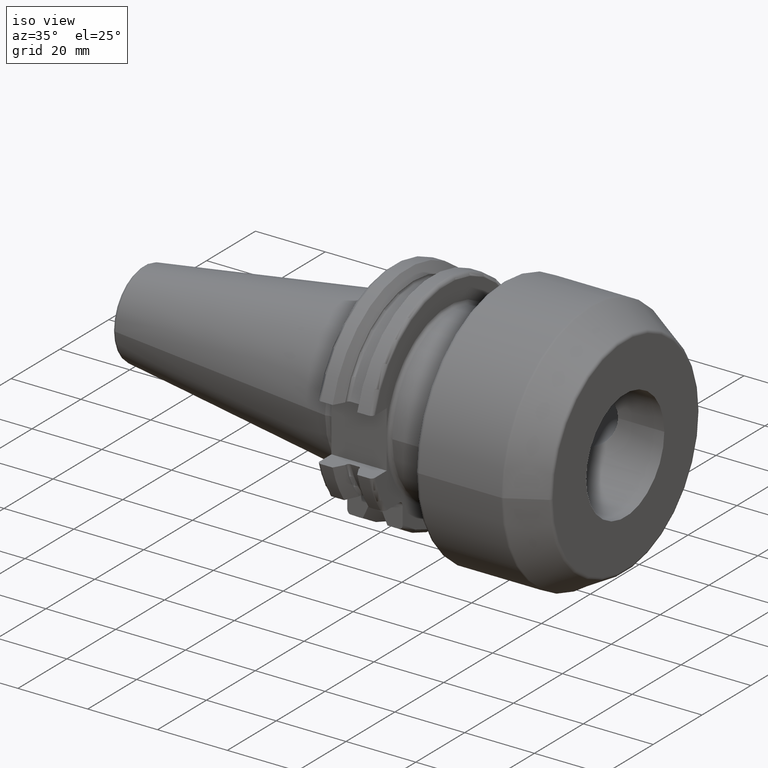
[diagram: clean part render]
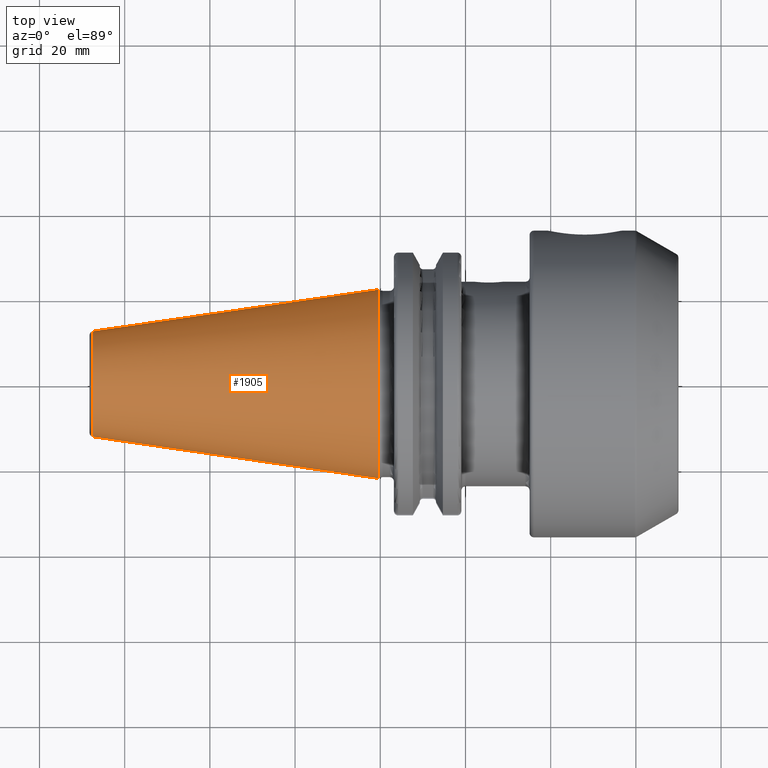
[diagram: tour spotlight — one face highlighted and labeled with its STEP entity id]
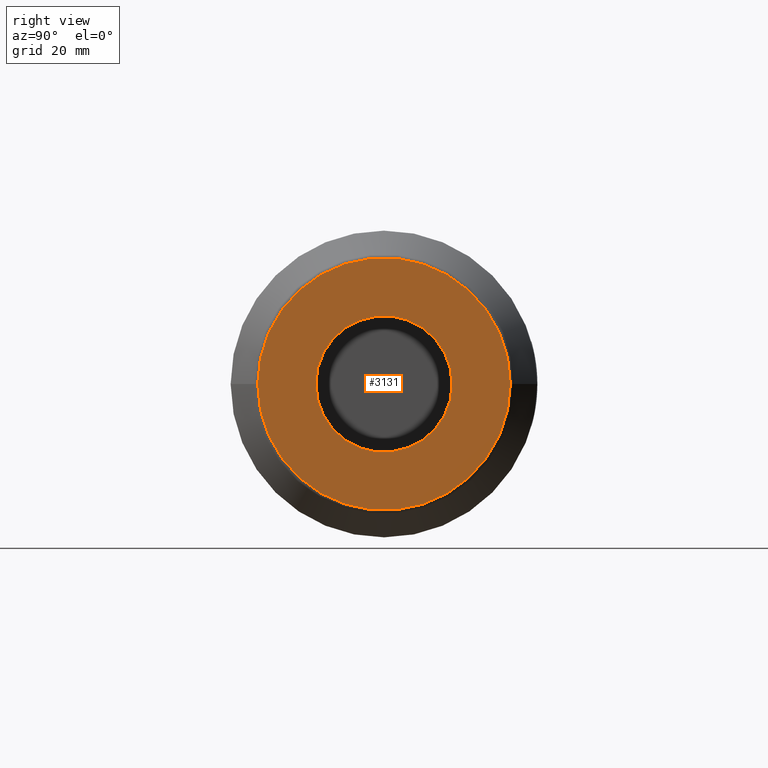
[diagram: tour spotlight — one face highlighted and labeled with its STEP entity id]
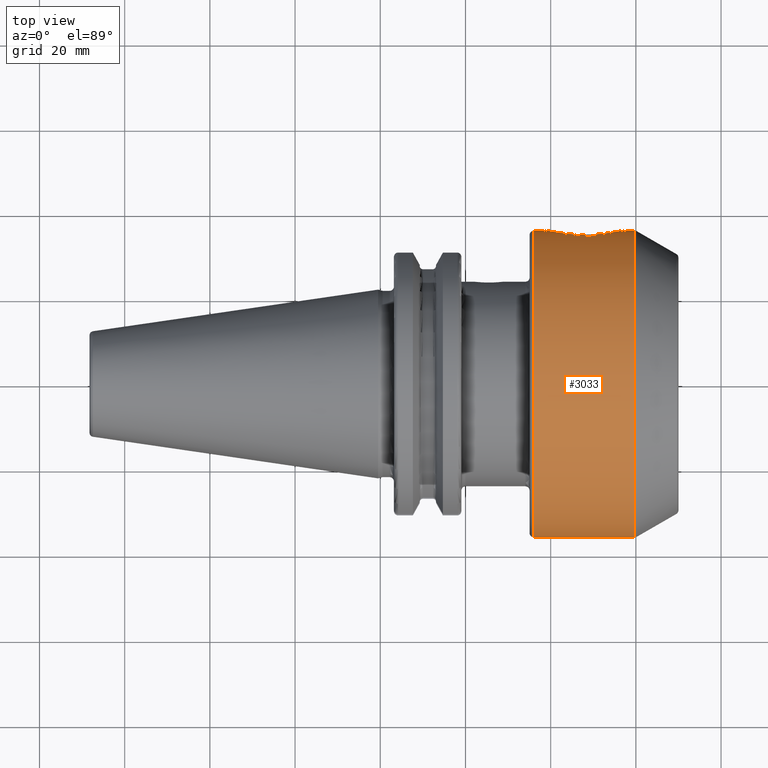
[diagram: tour spotlight — one face highlighted and labeled with its STEP entity id]
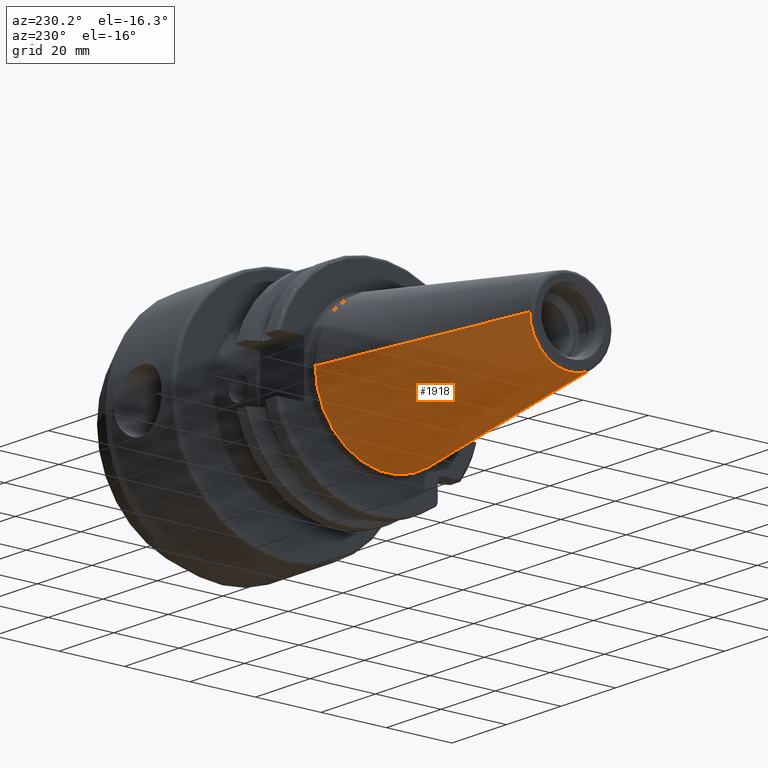
[diagram: tour spotlight — one face highlighted and labeled with its STEP entity id]
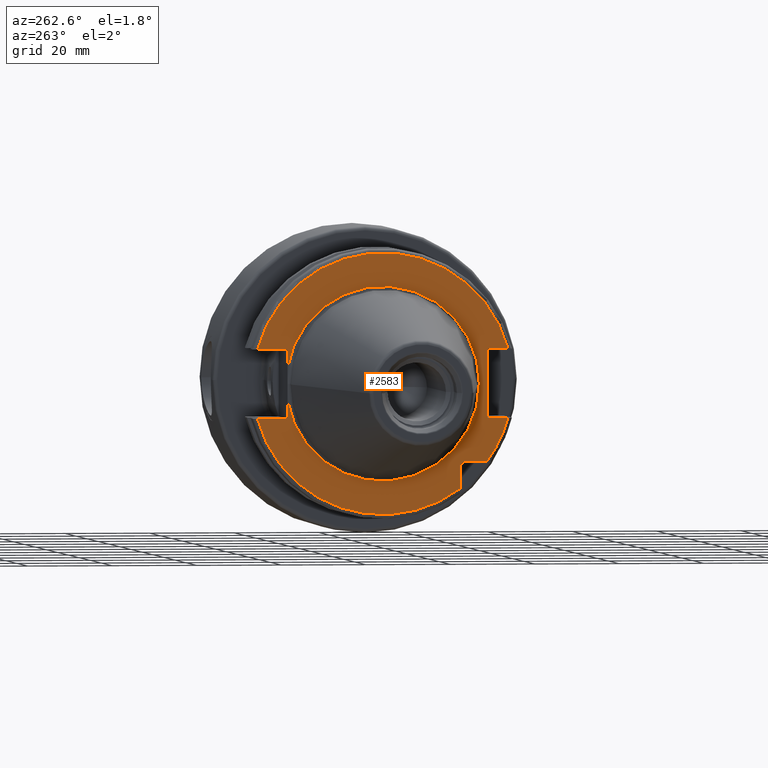
[diagram: tour spotlight — one face highlighted and labeled with its STEP entity id]
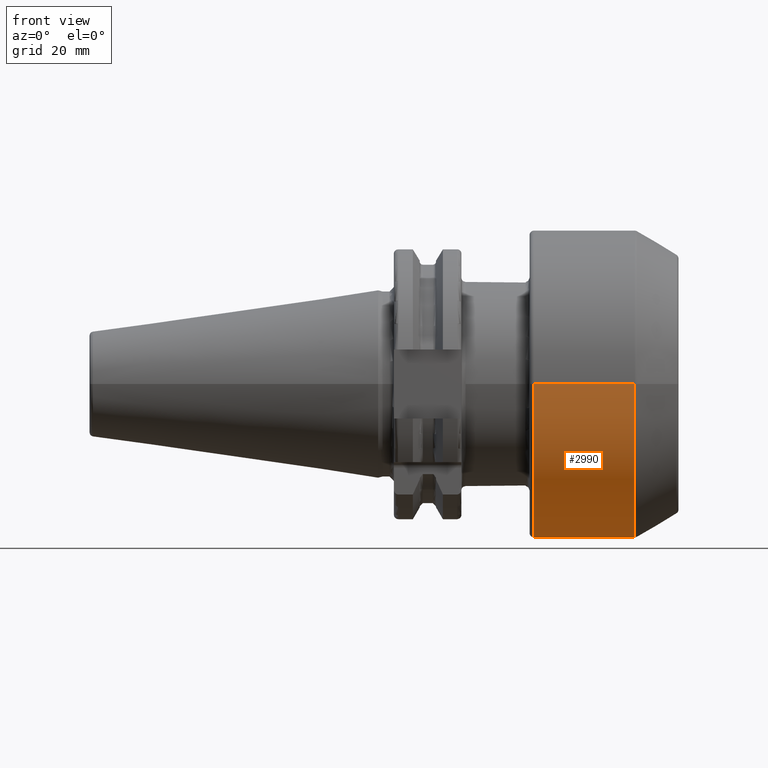
[diagram: tour spotlight — one face highlighted and labeled with its STEP entity id]
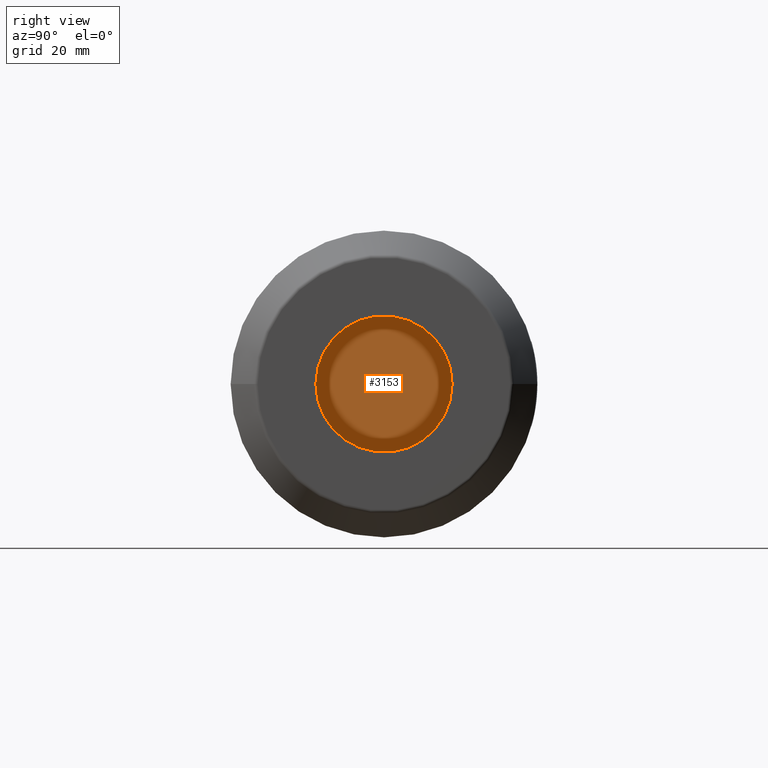
[diagram: tour spotlight — one face highlighted and labeled with its STEP entity id]
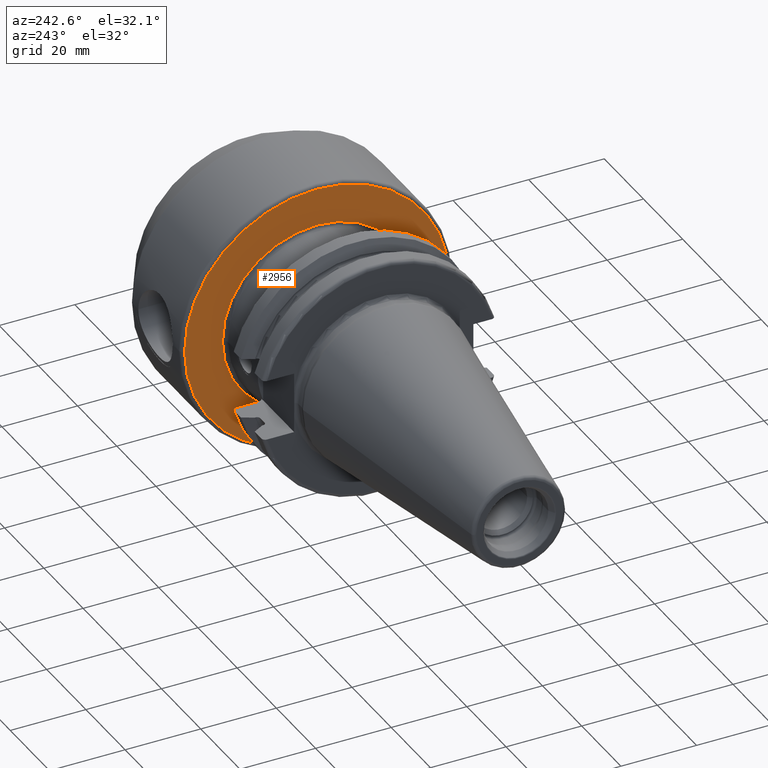
[diagram: tour spotlight — one face highlighted and labeled with its STEP entity id]
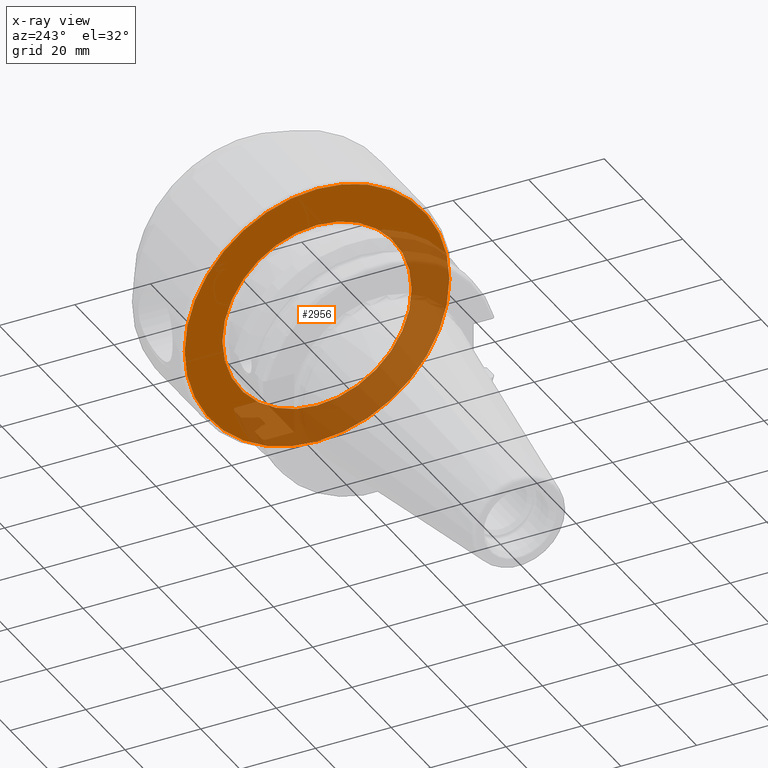
[diagram: x-ray of the same camera — body ghosted, this tour face saturated]
A machine part: a face-by-face anatomy tour. The part has 111 B-rep faces; the first image is the clean iso view, then the 8 largest visible faces are spotlighted one at a time (largest first), each with its STEP entity span.

Face 1 — top view, entity #1905. In plain terms, the highlighted conical surface has half-angle 8.298 deg.
Definition (entity closure, byte-faithful):
#37=CARTESIAN_POINT('',(-6.743710273571E1,0.E0,0.E0));
#38=DIRECTION('',(1.E0,0.E0,0.E0));
#39=DIRECTION('',(0.E0,1.E0,0.E0));
#40=AXIS2_PLACEMENT_3D('',#37,#38,#39);
#42=CARTESIAN_POINT('',(-4.896823332305E-1,0.E0,0.E0));
#43=DIRECTION('',(1.E0,0.E0,0.E0));
#44=DIRECTION('',(0.E0,1.E0,0.E0));
#45=AXIS2_PLACEMENT_3D('',#42,#43,#44);
#47=DIRECTION('',(-9.895312636440E-1,-1.443186691705E-1,0.E0));
#48=VECTOR('',#47,6.765568998391E1);
#49=CARTESIAN_POINT('',(-4.896823332305E-1,2.215358204157E1,0.E0));
#50=LINE('',#49,#48);
#51=DIRECTION('',(-9.895312636440E-1,1.443186691705E-1,0.E0));
#52=VECTOR('',#51,6.765568998391E1);
#53=CARTESIAN_POINT('',(-4.896823332305E-1,-2.215358204157E1,0.E0));
#54=LINE('',#53,#52);
#1553=CARTESIAN_POINT('',(-6.743710273571E1,1.238960290128E1,0.E0));
#1555=VERTEX_POINT('',#1553);
#1557=CARTESIAN_POINT('',(-6.743710273571E1,-1.238960290128E1,0.E0));
#1559=VERTEX_POINT('',#1557);
#1621=CARTESIAN_POINT('',(-4.896823332305E-1,2.215358204157E1,0.E0));
#1622=VERTEX_POINT('',#1621);
#1623=CARTESIAN_POINT('',(-4.896823332305E-1,-2.215358204157E1,0.E0));
#1624=VERTEX_POINT('',#1623);
#1891=CARTESIAN_POINT('',(-3.396339253447E1,0.E0,0.E0));
#1892=DIRECTION('',(1.E0,0.E0,0.E0));
#1893=DIRECTION('',(0.E0,-1.E0,0.E0));
#1894=AXIS2_PLACEMENT_3D('',#1891,#1892,#1893);
#1895=CONICAL_SURFACE('',#1894,1.727159247143E1,8.297826828206E0);
#1897=ORIENTED_EDGE('',*,*,#1896,.F.);
#1899=ORIENTED_EDGE('',*,*,#1898,.T.);
#1901=ORIENTED_EDGE('',*,*,#1900,.T.);
#1902=ORIENTED_EDGE('',*,*,#1884,.F.);
#1903=EDGE_LOOP('',(#1897,#1899,#1901,#1902));
#1904=FACE_OUTER_BOUND('',#1903,.F.);
#1905=ADVANCED_FACE('',(#1904),#1895,.T.);
#41=CIRCLE('',#40,1.238960290128E1);
#46=CIRCLE('',#45,2.215358204157E1);
#1884=EDGE_CURVE('',#1555,#1559,#41,.T.);
#1896=EDGE_CURVE('',#1622,#1555,#50,.T.);
#1898=EDGE_CURVE('',#1622,#1624,#46,.T.);
#1900=EDGE_CURVE('',#1624,#1559,#54,.T.);

Face 2 — right view, entity #3131. In plain terms, the highlighted planar face has unit normal (1, 0, 0).
Definition (entity closure, byte-faithful):
#1312=CARTESIAN_POINT('',(7.E1,0.E0,0.E0));
#1313=DIRECTION('',(1.E0,0.E0,0.E0));
#1314=DIRECTION('',(0.E0,1.E0,0.E0));
#1315=AXIS2_PLACEMENT_3D('',#1312,#1313,#1314);
#1317=CARTESIAN_POINT('',(7.E1,0.E0,0.E0));
#1318=DIRECTION('',(1.E0,0.E0,0.E0));
#1319=DIRECTION('',(0.E0,-1.E0,0.E0));
#1320=AXIS2_PLACEMENT_3D('',#1317,#1318,#1319);
#1322=CARTESIAN_POINT('',(7.E1,0.E0,0.E0));
#1323=DIRECTION('',(-1.E0,0.E0,0.E0));
#1324=DIRECTION('',(0.E0,1.E0,0.E0));
#1325=AXIS2_PLACEMENT_3D('',#1322,#1323,#1324);
#1327=CARTESIAN_POINT('',(7.E1,0.E0,0.E0));
#1328=DIRECTION('',(-1.E0,0.E0,0.E0));
#1329=DIRECTION('',(0.E0,-1.E0,0.E0));
#1330=AXIS2_PLACEMENT_3D('',#1327,#1328,#1329);
#1770=CARTESIAN_POINT('',(7.E1,1.6E1,0.E0));
#1771=CARTESIAN_POINT('',(7.E1,-1.6E1,0.E0));
#1772=VERTEX_POINT('',#1770);
#1773=VERTEX_POINT('',#1771);
#1786=CARTESIAN_POINT('',(7.E1,2.964914703891E1,-2.460308150490E-14));
#1787=CARTESIAN_POINT('',(7.E1,-2.964914703891E1,4.730584076552E-14));
#1788=VERTEX_POINT('',#1786);
#1789=VERTEX_POINT('',#1787);
#3118=CARTESIAN_POINT('',(7.E1,0.E0,0.E0));
#3119=DIRECTION('',(1.E0,0.E0,0.E0));
#3120=DIRECTION('',(0.E0,-1.E0,0.E0));
#3121=AXIS2_PLACEMENT_3D('',#3118,#3119,#3120);
#3122=PLANE('',#3121);
#3123=ORIENTED_EDGE('',*,*,#3112,.T.);
#3124=ORIENTED_EDGE('',*,*,#3098,.T.);
#3125=EDGE_LOOP('',(#3123,#3124));
#3126=FACE_OUTER_BOUND('',#3125,.F.);
#3127=ORIENTED_EDGE('',*,*,#2119,.T.);
#3128=ORIENTED_EDGE('',*,*,#2141,.T.);
#3129=EDGE_LOOP('',(#3127,#3128));
#3130=FACE_BOUND('',#3129,.F.);
#3131=ADVANCED_FACE('',(#3126,#3130),#3122,.T.);
#1316=CIRCLE('',#1315,1.6E1);
#1321=CIRCLE('',#1320,1.6E1);
#1326=CIRCLE('',#1325,2.964914703891E1);
#1331=CIRCLE('',#1330,2.964914703891E1);
#2119=EDGE_CURVE('',#1772,#1773,#1316,.T.);
#2141=EDGE_CURVE('',#1773,#1772,#1321,.T.);
#3098=EDGE_CURVE('',#1789,#1788,#1331,.T.);
#3112=EDGE_CURVE('',#1788,#1789,#1326,.T.);

Face 3 — top view, entity #3033. In plain terms, the highlighted cylindrical surface (partial cylindrical patch) has radius 36 mm, axis along (1, 0, 0).
Definition (entity closure, byte-faithful):
#1200=DIRECTION('',(-1.E0,0.E0,1.076140045131E-12));
#1201=VECTOR('',#1200,3.2E0);
#1202=CARTESIAN_POINT('',(3.925E1,3.6E1,0.E0));
#1203=LINE('',#1202,#1201);
#1209=DIRECTION('',(-1.E0,0.E0,-1.753633048803E-13));
#1210=VECTOR('',#1209,2.368205080757E1);
#1211=CARTESIAN_POINT('',(5.973205080757E1,-3.6E1,7.046757375519E-13));
#1212=LINE('',#1211,#1210);
#1218=DIRECTION('',(-1.E0,0.E0,2.427757077869E-13));
#1219=VECTOR('',#1218,2.982050807569E0);
#1220=CARTESIAN_POINT('',(5.973205080757E1,3.6E1,-7.217651312257E-13));
#1221=LINE('',#1220,#1219);
#1230=CARTESIAN_POINT('',(5.675E1,3.6E1,0.E0));
#1231=CARTESIAN_POINT('',(5.675E1,3.6E1,4.612756967184E-1));
#1232=CARTESIAN_POINT('',(5.667798589991E1,3.598239575850E1,1.370414455158E0));
#1233=CARTESIAN_POINT('',(5.635862950926E1,3.590613042482E1,2.705846880617E0));
#1234=CARTESIAN_POINT('',(5.583732576085E1,3.578745453658E1,3.969876847462E0));
#1235=CARTESIAN_POINT('',(5.512555594890E1,3.563714783681E1,5.139618959728E0));
#1236=CARTESIAN_POINT('',(5.423600828501E1,3.546860356401E1,6.189262365687E0));
#1237=CARTESIAN_POINT('',(5.318825896679E1,3.529797068646E1,7.091204701772E0));
#1238=CARTESIAN_POINT('',(5.200377068404E1,3.514202682792E1,7.821565471602E0));
#1239=CARTESIAN_POINT('',(5.072231907591E1,3.501822024073E1,8.353815828371E0));
#1240=CARTESIAN_POINT('',(4.938559255103E1,3.493918830350E1,8.675653569221E0));
#1241=CARTESIAN_POINT('',(4.802207257830E1,3.491150780264E1,8.785440789837E0));
#1242=CARTESIAN_POINT('',(4.665714047424E1,3.493749325739E1,8.682419774839E0));
#1243=CARTESIAN_POINT('',(4.531874089723E1,3.501503414241E1,8.367045332513E0));
#1244=CARTESIAN_POINT('',(4.403591887625E1,3.513750357161E1,7.841655410783E0));
#1245=CARTESIAN_POINT('',(4.284770485934E1,3.529262953106E1,7.117583224940E0));
#1246=CARTESIAN_POINT('',(4.179059929608E1,3.546384211952E1,6.216563230311E0));
#1247=CARTESIAN_POINT('',(4.089160181120E1,3.563365904071E1,5.164063163545E0));
#1248=CARTESIAN_POINT('',(4.017225517124E1,3.578532281286E1,3.989562333681E0));
#1249=CARTESIAN_POINT('',(3.964574291133E1,3.590509743700E1,2.720445458926E0));
#1250=CARTESIAN_POINT('',(3.932288929380E1,3.598218053227E1,1.378440718654E0));
#1251=CARTESIAN_POINT('',(3.925E1,3.6E1,4.640940642565E-1));
#1252=CARTESIAN_POINT('',(3.925E1,3.6E1,0.E0));
#1254=CARTESIAN_POINT('',(5.973205080757E1,0.E0,0.E0));
#1255=DIRECTION('',(-1.E0,0.E0,0.E0));
#1256=DIRECTION('',(0.E0,-1.E0,0.E0));
#1257=AXIS2_PLACEMENT_3D('',#1254,#1255,#1256);
#1259=CARTESIAN_POINT('',(3.605E1,0.E0,0.E0));
#1260=DIRECTION('',(-1.E0,0.E0,0.E0));
#1261=DIRECTION('',(0.E0,-1.E0,0.E0));
#1262=AXIS2_PLACEMENT_3D('',#1259,#1260,#1261);
#1774=CARTESIAN_POINT('',(5.973205080757E1,3.6E1,0.E0));
#1775=CARTESIAN_POINT('',(5.973205080757E1,-3.6E1,0.E0));
#1776=VERTEX_POINT('',#1774);
#1777=VERTEX_POINT('',#1775);
#1799=VERTEX_POINT('',#1230);
#1800=VERTEX_POINT('',#1252);
#1821=CARTESIAN_POINT('',(3.605E1,3.6E1,3.445852508657E-12));
#1822=VERTEX_POINT('',#1821);
#1835=CARTESIAN_POINT('',(3.605E1,-3.6E1,0.E0));
#1836=VERTEX_POINT('',#1835);
#3018=CARTESIAN_POINT('',(1.65025E1,0.E0,0.E0));
#3019=DIRECTION('',(1.E0,0.E0,0.E0));
#3020=DIRECTION('',(0.E0,-1.E0,0.E0));
#3021=AXIS2_PLACEMENT_3D('',#3018,#3019,#3020);
#3022=CYLINDRICAL_SURFACE('',#3021,3.6E1);
#3023=ORIENTED_EDGE('',*,*,#3010,.F.);
#3024=ORIENTED_EDGE('',*,*,#2986,.F.);
#3026=ORIENTED_EDGE('',*,*,#3025,.F.);
#3027=ORIENTED_EDGE('',*,*,#2982,.T.);
#3029=ORIENTED_EDGE('',*,*,#3028,.T.);
#3030=ORIENTED_EDGE('',*,*,#2979,.F.);
#3031=EDGE_LOOP('',(#3023,#3024,#3026,#3027,#3029,#3030));
#3032=FACE_OUTER_BOUND('',#3031,.F.);
#3033=ADVANCED_FACE('',(#3032),#3022,.T.);
#1253=B_SPLINE_CURVE_WITH_KNOTS('',3,(#1230,#1231,#1232,#1233,#1234,#1235,#1236,
#1237,#1238,#1239,#1240,#1241,#1242,#1243,#1244,#1245,#1246,#1247,#1248,#1249,
#1250,#1251,#1252),.UNSPECIFIED.,.F.,.F.,(4,1,1,1,1,1,1,1,1,1,1,1,1,1,1,1,1,1,1,
1,4),(0.E0,5.E-2,1.E-1,1.5E-1,2.E-1,2.5E-1,3.E-1,3.5E-1,4.E-1,4.5E-1,5.E-1,
5.5E-1,6.E-1,6.5E-1,7.E-1,7.5E-1,8.E-1,8.5E-1,9.E-1,9.5E-1,1.E0),.UNSPECIFIED.);
#1258=CIRCLE('',#1257,3.6E1);
#1263=CIRCLE('',#1262,3.6E1);
#2979=EDGE_CURVE('',#1800,#1822,#1203,.T.);
#2982=EDGE_CURVE('',#1777,#1836,#1212,.T.);
#2986=EDGE_CURVE('',#1776,#1799,#1221,.T.);
#3010=EDGE_CURVE('',#1799,#1800,#1253,.T.);
#3025=EDGE_CURVE('',#1777,#1776,#1258,.T.);
#3028=EDGE_CURVE('',#1836,#1822,#1263,.T.);

Face 4 — auxiliary view, entity #1918. In plain terms, the highlighted conical surface has half-angle 8.298 deg.
Definition (entity closure, byte-faithful):
#32=CARTESIAN_POINT('',(-6.743710273571E1,0.E0,0.E0));
#33=DIRECTION('',(-1.E0,0.E0,0.E0));
#34=DIRECTION('',(0.E0,1.E0,0.E0));
#35=AXIS2_PLACEMENT_3D('',#32,#33,#34);
#47=DIRECTION('',(-9.895312636440E-1,-1.443186691705E-1,0.E0));
#48=VECTOR('',#47,6.765568998391E1);
#49=CARTESIAN_POINT('',(-4.896823332305E-1,2.215358204157E1,0.E0));
#50=LINE('',#49,#48);
#51=DIRECTION('',(-9.895312636440E-1,1.443186691705E-1,0.E0));
#52=VECTOR('',#51,6.765568998391E1);
#53=CARTESIAN_POINT('',(-4.896823332305E-1,-2.215358204157E1,0.E0));
#54=LINE('',#53,#52);
#55=CARTESIAN_POINT('',(-4.896823332305E-1,0.E0,0.E0));
#56=DIRECTION('',(-1.E0,0.E0,0.E0));
#57=DIRECTION('',(0.E0,1.E0,0.E0));
#58=AXIS2_PLACEMENT_3D('',#55,#56,#57);
#1553=CARTESIAN_POINT('',(-6.743710273571E1,1.238960290128E1,0.E0));
#1555=VERTEX_POINT('',#1553);
#1557=CARTESIAN_POINT('',(-6.743710273571E1,-1.238960290128E1,0.E0));
#1559=VERTEX_POINT('',#1557);
#1621=CARTESIAN_POINT('',(-4.896823332305E-1,2.215358204157E1,0.E0));
#1622=VERTEX_POINT('',#1621);
#1623=CARTESIAN_POINT('',(-4.896823332305E-1,-2.215358204157E1,0.E0));
#1624=VERTEX_POINT('',#1623);
#1906=CARTESIAN_POINT('',(-3.396339253447E1,0.E0,0.E0));
#1907=DIRECTION('',(1.E0,0.E0,0.E0));
#1908=DIRECTION('',(0.E0,-1.E0,0.E0));
#1909=AXIS2_PLACEMENT_3D('',#1906,#1907,#1908);
#1910=CONICAL_SURFACE('',#1909,1.727159247143E1,8.297826828206E0);
#1911=ORIENTED_EDGE('',*,*,#1896,.T.);
#1912=ORIENTED_EDGE('',*,*,#1873,.T.);
#1913=ORIENTED_EDGE('',*,*,#1900,.F.);
#1915=ORIENTED_EDGE('',*,*,#1914,.F.);
#1916=EDGE_LOOP('',(#1911,#1912,#1913,#1915));
#1917=FACE_OUTER_BOUND('',#1916,.F.);
#1918=ADVANCED_FACE('',(#1917),#1910,.T.);
#36=CIRCLE('',#35,1.238960290128E1);
#59=CIRCLE('',#58,2.215358204157E1);
#1873=EDGE_CURVE('',#1555,#1559,#36,.T.);
#1896=EDGE_CURVE('',#1622,#1555,#50,.T.);
#1900=EDGE_CURVE('',#1624,#1559,#54,.T.);
#1914=EDGE_CURVE('',#1622,#1624,#59,.T.);

Face 5 — auxiliary view, entity #2583. In plain terms, the highlighted planar face has unit normal (1, 0, 0).
Definition (entity closure, byte-faithful):
#117=CARTESIAN_POINT('',(3.2E0,0.E0,0.E0));
#118=DIRECTION('',(-1.E0,0.E0,0.E0));
#119=DIRECTION('',(0.E0,9.857923497268E-1,-1.679685780739E-1));
#120=AXIS2_PLACEMENT_3D('',#117,#118,#119);
#659=DIRECTION('',(0.E0,-1.E0,0.E0));
#660=VECTOR('',#659,4.990259339464E0);
#661=CARTESIAN_POINT('',(3.2E0,-1.97E1,-1.835E1));
#662=LINE('',#661,#660);
#663=DIRECTION('',(0.E0,0.E0,1.E0));
#664=VECTOR('',#663,4.990259339464E0);
#665=CARTESIAN_POINT('',(3.2E0,-1.835E1,-2.469025933946E1));
#666=LINE('',#665,#664);
#667=CARTESIAN_POINT('',(3.2E0,0.E0,0.E0));
#668=DIRECTION('',(-1.E0,0.E0,0.E0));
#669=DIRECTION('',(0.E0,9.647119303464E-1,-2.633075985372E-1));
#670=AXIS2_PLACEMENT_3D('',#667,#668,#669);
#672=DIRECTION('',(0.E0,-1.E0,0.E0));
#673=VECTOR('',#672,7.126950757280E0);
#674=CARTESIAN_POINT('',(3.2E0,2.967695075728E1,-8.1E0));
#675=LINE('',#674,#673);
#676=DIRECTION('',(0.E0,0.E0,-1.E0));
#677=VECTOR('',#676,4.257718776560E0);
#678=CARTESIAN_POINT('',(3.2E0,2.255E1,-3.842281223440E0));
#679=LINE('',#678,#677);
#680=DIRECTION('',(0.E0,0.E0,-1.E0));
#681=VECTOR('',#680,4.257718776560E0);
#682=CARTESIAN_POINT('',(3.2E0,2.255E1,8.1E0));
#683=LINE('',#682,#681);
#684=DIRECTION('',(0.E0,-1.E0,0.E0));
#685=VECTOR('',#684,7.126950757280E0);
#686=CARTESIAN_POINT('',(3.2E0,2.967695075728E1,8.1E0));
#687=LINE('',#686,#685);
#688=CARTESIAN_POINT('',(3.2E0,0.E0,0.E0));
#689=DIRECTION('',(1.E0,0.E0,0.E0));
#690=DIRECTION('',(0.E0,9.647119303464E-1,2.633075985372E-1));
#691=AXIS2_PLACEMENT_3D('',#688,#689,#690);
#693=DIRECTION('',(0.E0,1.E0,0.E0));
#694=VECTOR('',#693,4.826950757280E0);
#695=CARTESIAN_POINT('',(3.2E0,-2.967695075728E1,8.1E0));
#696=LINE('',#695,#694);
#697=DIRECTION('',(0.E0,0.E0,1.E0));
#698=VECTOR('',#697,1.62E1);
#699=CARTESIAN_POINT('',(3.2E0,-2.485E1,-8.1E0));
#700=LINE('',#699,#698);
#701=DIRECTION('',(0.E0,1.E0,0.E0));
#702=VECTOR('',#701,4.826950757280E0);
#703=CARTESIAN_POINT('',(3.2E0,-2.967695075728E1,-8.1E0));
#704=LINE('',#703,#702);
#705=CARTESIAN_POINT('',(3.2E0,0.E0,0.E0));
#706=DIRECTION('',(-1.E0,0.E0,0.E0));
#707=DIRECTION('',(0.E0,-8.026089992512E-1,-5.965054855750E-1));
#708=AXIS2_PLACEMENT_3D('',#705,#706,#707);
#719=CARTESIAN_POINT('',(3.2E0,-1.97E1,-1.97E1));
#720=DIRECTION('',(1.E0,0.E0,0.E0));
#721=DIRECTION('',(0.E0,1.E0,0.E0));
#722=AXIS2_PLACEMENT_3D('',#719,#720,#721);
#1109=CARTESIAN_POINT('',(3.2E0,0.E0,0.E0));
#1110=DIRECTION('',(1.E0,0.E0,0.E0));
#1111=DIRECTION('',(0.E0,9.857923497268E-1,1.679685780739E-1));
#1112=AXIS2_PLACEMENT_3D('',#1109,#1110,#1111);
#1565=CARTESIAN_POINT('',(3.2E0,-2.2875E1,0.E0));
#1567=VERTEX_POINT('',#1565);
#1707=CARTESIAN_POINT('',(3.2E0,2.967695075728E1,8.1E0));
#1708=CARTESIAN_POINT('',(3.2E0,2.255E1,8.1E0));
#1709=VERTEX_POINT('',#1707);
#1710=VERTEX_POINT('',#1708);
#1711=CARTESIAN_POINT('',(3.2E0,2.255E1,3.842281223440E0));
#1712=VERTEX_POINT('',#1711);
#1713=CARTESIAN_POINT('',(3.2E0,2.255E1,-3.842281223440E0));
#1714=CARTESIAN_POINT('',(3.2E0,2.255E1,-8.1E0));
#1715=VERTEX_POINT('',#1713);
#1716=VERTEX_POINT('',#1714);
#1717=CARTESIAN_POINT('',(3.2E0,2.967695075728E1,-8.1E0));
#1718=VERTEX_POINT('',#1717);
#1719=CARTESIAN_POINT('',(3.2E0,-2.967695075728E1,-8.1E0));
#1720=CARTESIAN_POINT('',(3.2E0,-2.485E1,-8.1E0));
#1721=VERTEX_POINT('',#1719);
#1722=VERTEX_POINT('',#1720);
#1723=CARTESIAN_POINT('',(3.2E0,-2.485E1,8.1E0));
#1724=VERTEX_POINT('',#1723);
#1725=CARTESIAN_POINT('',(3.2E0,-2.967695075728E1,8.1E0));
#1726=VERTEX_POINT('',#1725);
#1752=CARTESIAN_POINT('',(3.2E0,-1.835E1,-2.469025933946E1));
#1753=VERTEX_POINT('',#1752);
#1760=CARTESIAN_POINT('',(3.2E0,-1.97E1,-1.835E1));
#1761=CARTESIAN_POINT('',(3.2E0,-2.469025933946E1,-1.835E1));
#1762=VERTEX_POINT('',#1760);
#1763=VERTEX_POINT('',#1761);
#1764=CARTESIAN_POINT('',(3.2E0,-1.835E1,-1.97E1));
#1765=VERTEX_POINT('',#1764);
#2554=CARTESIAN_POINT('',(3.2E0,0.E0,0.E0));
#2555=DIRECTION('',(1.E0,0.E0,0.E0));
#2556=DIRECTION('',(0.E0,-1.E0,0.E0));
#2557=AXIS2_PLACEMENT_3D('',#2554,#2555,#2556);
#2558=PLANE('',#2557);
#2560=ORIENTED_EDGE('',*,*,#2559,.F.);
#2562=ORIENTED_EDGE('',*,*,#2561,.F.);
#2564=ORIENTED_EDGE('',*,*,#2563,.F.);
#2566=ORIENTED_EDGE('',*,*,#2565,.F.);
#2567=ORIENTED_EDGE('',*,*,#2194,.T.);
#2568=ORIENTED_EDGE('',*,*,#2006,.F.);
#2569=ORIENTED_EDGE('',*,*,#1987,.T.);
#2571=ORIENTED_EDGE('',*,*,#2570,.F.);
#2572=ORIENTED_EDGE('',*,*,#2001,.F.);
#2573=ORIENTED_EDGE('',*,*,#2064,.F.);
#2575=ORIENTED_EDGE('',*,*,#2574,.T.);
#2576=ORIENTED_EDGE('',*,*,#2533,.T.);
#2577=ORIENTED_EDGE('',*,*,#2274,.F.);
#2578=ORIENTED_EDGE('',*,*,#2309,.F.);
#2580=ORIENTED_EDGE('',*,*,#2579,.F.);
#2581=EDGE_LOOP('',(#2560,#2562,#2564,#2566,#2567,#2568,#2569,#2571,#2572,#2573,
#2575,#2576,#2577,#2578,#2580));
#2582=FACE_OUTER_BOUND('',#2581,.F.);
#2583=ADVANCED_FACE('',(#2582),#2558,.F.);
#121=CIRCLE('',#120,2.2875E1);
#671=CIRCLE('',#670,3.07625E1);
#692=CIRCLE('',#691,3.07625E1);
#709=CIRCLE('',#708,3.07625E1);
#723=CIRCLE('',#722,1.35E0);
#1113=CIRCLE('',#1112,2.2875E1);
#1987=EDGE_CURVE('',#1715,#1567,#121,.T.);
#2001=EDGE_CURVE('',#1710,#1712,#683,.T.);
#2006=EDGE_CURVE('',#1715,#1716,#679,.T.);
#2064=EDGE_CURVE('',#1709,#1710,#687,.T.);
#2194=EDGE_CURVE('',#1718,#1716,#675,.T.);
#2274=EDGE_CURVE('',#1722,#1724,#700,.T.);
#2309=EDGE_CURVE('',#1721,#1722,#704,.T.);
#2533=EDGE_CURVE('',#1726,#1724,#696,.T.);
#2559=EDGE_CURVE('',#1762,#1763,#662,.T.);
#2561=EDGE_CURVE('',#1765,#1762,#723,.T.);
#2563=EDGE_CURVE('',#1753,#1765,#666,.T.);
#2565=EDGE_CURVE('',#1718,#1753,#671,.T.);
#2570=EDGE_CURVE('',#1712,#1567,#1113,.T.);
#2574=EDGE_CURVE('',#1709,#1726,#692,.T.);
#2579=EDGE_CURVE('',#1763,#1721,#709,.T.);

Face 6 — front view, entity #2990. In plain terms, the highlighted cylindrical surface (partial cylindrical patch) has radius 36 mm, axis along (1, 0, 0).
Definition (entity closure, byte-faithful):
#1176=CARTESIAN_POINT('',(3.925E1,3.6E1,0.E0));
#1177=CARTESIAN_POINT('',(3.925E1,3.6E1,-4.608858053215E-1));
#1178=CARTESIAN_POINT('',(3.932189488195E1,3.598242511909E1,-1.369293175827E0));
#1179=CARTESIAN_POINT('',(3.964074311566E1,3.590627863925E1,-2.703742526327E0));
#1180=CARTESIAN_POINT('',(4.016129106866E1,3.578776270833E1,-3.967012542360E0));
#1181=CARTESIAN_POINT('',(4.087183742587E1,3.563767948365E1,-5.135867022004E0));
#1182=CARTESIAN_POINT('',(4.175974245298E1,3.546936724740E1,-6.184863975970E0));
#1183=CARTESIAN_POINT('',(4.280591307987E1,3.529883824724E1,-7.086915319760E0));
#1184=CARTESIAN_POINT('',(4.399018945708E1,3.514271229508E1,-7.818525787901E0));
#1185=CARTESIAN_POINT('',(4.527211276696E1,3.501864768790E1,-8.352043002202E0));
#1186=CARTESIAN_POINT('',(4.660921026285E1,3.493939137900E1,-8.674843142199E0));
#1187=CARTESIAN_POINT('',(4.797302205447E1,3.491150585801E1,-8.785448479786E0));
#1188=CARTESIAN_POINT('',(4.933850461055E1,3.493731823492E1,-8.683118528090E0));
#1189=CARTESIAN_POINT('',(5.067751268820E1,3.501473925745E1,-8.368271412720E0));
#1190=CARTESIAN_POINT('',(5.196101761897E1,3.513715003233E1,-7.843231547080E0));
#1191=CARTESIAN_POINT('',(5.314989369523E1,3.529227191322E1,-7.119352793716E0));
#1192=CARTESIAN_POINT('',(5.420767503643E1,3.546353419224E1,-6.218324343160E0));
#1193=CARTESIAN_POINT('',(5.510725812522E1,3.563342768268E1,-5.165676444707E0));
#1194=CARTESIAN_POINT('',(5.582710140372E1,3.578517968153E1,-3.990881548993E0));
#1195=CARTESIAN_POINT('',(5.635397590858E1,3.590503095330E1,-2.721390792869E0));
#1196=CARTESIAN_POINT('',(5.667705875124E1,3.598216774889E1,-1.378930737278E0));
#1197=CARTESIAN_POINT('',(5.675E1,3.6E1,-4.642621864882E-1));
#1198=CARTESIAN_POINT('',(5.675E1,3.6E1,0.E0));
#1200=DIRECTION('',(-1.E0,0.E0,1.076140045131E-12));
#1201=VECTOR('',#1200,3.2E0);
#1202=CARTESIAN_POINT('',(3.925E1,3.6E1,0.E0));
#1203=LINE('',#1202,#1201);
#1204=CARTESIAN_POINT('',(3.605E1,0.E0,0.E0));
#1205=DIRECTION('',(-1.E0,0.E0,0.E0));
#1206=DIRECTION('',(0.E0,1.E0,0.E0));
#1207=AXIS2_PLACEMENT_3D('',#1204,#1205,#1206);
#1209=DIRECTION('',(-1.E0,0.E0,-1.753633048803E-13));
#1210=VECTOR('',#1209,2.368205080757E1);
#1211=CARTESIAN_POINT('',(5.973205080757E1,-3.6E1,7.046757375519E-13));
#1212=LINE('',#1211,#1210);
#1213=CARTESIAN_POINT('',(5.973205080757E1,0.E0,0.E0));
#1214=DIRECTION('',(-1.E0,0.E0,0.E0));
#1215=DIRECTION('',(0.E0,1.E0,0.E0));
#1216=AXIS2_PLACEMENT_3D('',#1213,#1214,#1215);
#1218=DIRECTION('',(-1.E0,0.E0,2.427757077869E-13));
#1219=VECTOR('',#1218,2.982050807569E0);
#1220=CARTESIAN_POINT('',(5.973205080757E1,3.6E1,-7.217651312257E-13));
#1221=LINE('',#1220,#1219);
#1230=CARTESIAN_POINT('',(5.675E1,3.6E1,0.E0));
#1252=CARTESIAN_POINT('',(3.925E1,3.6E1,0.E0));
#1774=CARTESIAN_POINT('',(5.973205080757E1,3.6E1,0.E0));
#1775=CARTESIAN_POINT('',(5.973205080757E1,-3.6E1,0.E0));
#1776=VERTEX_POINT('',#1774);
#1777=VERTEX_POINT('',#1775);
#1799=VERTEX_POINT('',#1230);
#1800=VERTEX_POINT('',#1252);
#1821=CARTESIAN_POINT('',(3.605E1,3.6E1,3.445852508657E-12));
#1822=VERTEX_POINT('',#1821);
#1835=CARTESIAN_POINT('',(3.605E1,-3.6E1,0.E0));
#1836=VERTEX_POINT('',#1835);
#2972=CARTESIAN_POINT('',(1.65025E1,0.E0,0.E0));
#2973=DIRECTION('',(1.E0,0.E0,0.E0));
#2974=DIRECTION('',(0.E0,-1.E0,0.E0));
#2975=AXIS2_PLACEMENT_3D('',#2972,#2973,#2974);
#2976=CYLINDRICAL_SURFACE('',#2975,3.6E1);
#2978=ORIENTED_EDGE('',*,*,#2977,.F.);
#2980=ORIENTED_EDGE('',*,*,#2979,.T.);
#2981=ORIENTED_EDGE('',*,*,#2962,.T.);
#2983=ORIENTED_EDGE('',*,*,#2982,.F.);
#2985=ORIENTED_EDGE('',*,*,#2984,.F.);
#2987=ORIENTED_EDGE('',*,*,#2986,.T.);
#2988=EDGE_LOOP('',(#2978,#2980,#2981,#2983,#2985,#2987));
#2989=FACE_OUTER_BOUND('',#2988,.F.);
#2990=ADVANCED_FACE('',(#2989),#2976,.T.);
#1199=B_SPLINE_CURVE_WITH_KNOTS('',3,(#1176,#1177,#1178,#1179,#1180,#1181,#1182,
#1183,#1184,#1185,#1186,#1187,#1188,#1189,#1190,#1191,#1192,#1193,#1194,#1195,
#1196,#1197,#1198),.UNSPECIFIED.,.F.,.F.,(4,1,1,1,1,1,1,1,1,1,1,1,1,1,1,1,1,1,1,
1,4),(0.E0,5.E-2,1.E-1,1.5E-1,2.E-1,2.5E-1,3.E-1,3.5E-1,4.E-1,4.5E-1,5.E-1,
5.5E-1,6.E-1,6.5E-1,7.E-1,7.5E-1,8.E-1,8.5E-1,9.E-1,9.5E-1,1.E0),.UNSPECIFIED.);
#1208=CIRCLE('',#1207,3.6E1);
#1217=CIRCLE('',#1216,3.6E1);
#2962=EDGE_CURVE('',#1822,#1836,#1208,.T.);
#2977=EDGE_CURVE('',#1800,#1799,#1199,.T.);
#2979=EDGE_CURVE('',#1800,#1822,#1203,.T.);
#2982=EDGE_CURVE('',#1777,#1836,#1212,.T.);
#2984=EDGE_CURVE('',#1776,#1777,#1217,.T.);
#2986=EDGE_CURVE('',#1776,#1799,#1221,.T.);

Face 7 — right view, entity #3153. In plain terms, the highlighted planar face has unit normal (1, 0, 0).
Definition (entity closure, byte-faithful):
#1337=CARTESIAN_POINT('',(4.9E0,0.E0,0.E0));
#1338=DIRECTION('',(-1.E0,0.E0,0.E0));
#1339=DIRECTION('',(0.E0,1.E0,0.E0));
#1340=AXIS2_PLACEMENT_3D('',#1337,#1338,#1339);
#1342=CARTESIAN_POINT('',(4.9E0,0.E0,0.E0));
#1343=DIRECTION('',(1.E0,0.E0,0.E0));
#1344=DIRECTION('',(0.E0,1.E0,0.E0));
#1345=AXIS2_PLACEMENT_3D('',#1342,#1343,#1344);
#1766=CARTESIAN_POINT('',(4.9E0,1.6E1,0.E0));
#1767=CARTESIAN_POINT('',(4.9E0,-1.6E1,0.E0));
#1768=VERTEX_POINT('',#1766);
#1769=VERTEX_POINT('',#1767);
#3144=CARTESIAN_POINT('',(4.9E0,0.E0,0.E0));
#3145=DIRECTION('',(1.E0,0.E0,0.E0));
#3146=DIRECTION('',(0.E0,-1.E0,0.E0));
#3147=AXIS2_PLACEMENT_3D('',#3144,#3145,#3146);
#3148=PLANE('',#3147);
#3149=ORIENTED_EDGE('',*,*,#2144,.T.);
#3150=ORIENTED_EDGE('',*,*,#2115,.F.);
#3151=EDGE_LOOP('',(#3149,#3150));
#3152=FACE_OUTER_BOUND('',#3151,.F.);
#3153=ADVANCED_FACE('',(#3152),#3148,.T.);
#1341=CIRCLE('',#1340,1.6E1);
#1346=CIRCLE('',#1345,1.6E1);
#2115=EDGE_CURVE('',#1768,#1769,#1346,.T.);
#2144=EDGE_CURVE('',#1768,#1769,#1341,.T.);

Face 8 — auxiliary view, entity #2956. An x-ray twin of the same camera follows (body ghosted, this face saturated) — the face is partly hidden behind the body. In plain terms, the highlighted planar face has unit normal (1, 0, 0).
Definition (entity closure, byte-faithful):
#1151=CARTESIAN_POINT('',(3.505E1,0.E0,0.E0));
#1152=DIRECTION('',(1.E0,0.E0,0.E0));
#1153=DIRECTION('',(0.E0,-1.E0,0.E0));
#1154=AXIS2_PLACEMENT_3D('',#1151,#1152,#1153);
#1156=CARTESIAN_POINT('',(3.505E1,0.E0,0.E0));
#1157=DIRECTION('',(1.E0,0.E0,0.E0));
#1158=DIRECTION('',(0.E0,1.E0,0.E0));
#1159=AXIS2_PLACEMENT_3D('',#1156,#1157,#1158);
#1161=CARTESIAN_POINT('',(3.505E1,0.E0,0.E0));
#1162=DIRECTION('',(-1.E0,0.E0,0.E0));
#1163=DIRECTION('',(0.E0,1.E0,0.E0));
#1164=AXIS2_PLACEMENT_3D('',#1161,#1162,#1163);
#1166=CARTESIAN_POINT('',(3.505E1,0.E0,0.E0));
#1167=DIRECTION('',(-1.E0,0.E0,0.E0));
#1168=DIRECTION('',(0.E0,-1.E0,0.E0));
#1169=AXIS2_PLACEMENT_3D('',#1166,#1167,#1168);
#1829=CARTESIAN_POINT('',(3.505E1,-2.5E1,0.E0));
#1830=CARTESIAN_POINT('',(3.505E1,2.5E1,0.E0));
#1831=VERTEX_POINT('',#1829);
#1832=VERTEX_POINT('',#1830);
#1837=CARTESIAN_POINT('',(3.505E1,-3.5E1,0.E0));
#1838=VERTEX_POINT('',#1837);
#1839=CARTESIAN_POINT('',(3.505E1,3.5E1,0.E0));
#1840=VERTEX_POINT('',#1839);
#2941=CARTESIAN_POINT('',(3.505E1,0.E0,0.E0));
#2942=DIRECTION('',(1.E0,0.E0,0.E0));
#2943=DIRECTION('',(0.E0,-1.E0,0.E0));
#2944=AXIS2_PLACEMENT_3D('',#2941,#2942,#2943);
#2945=PLANE('',#2944);
#2947=ORIENTED_EDGE('',*,*,#2946,.F.);
#2949=ORIENTED_EDGE('',*,*,#2948,.F.);
#2950=EDGE_LOOP('',(#2947,#2949));
#2951=FACE_OUTER_BOUND('',#2950,.F.);
#2952=ORIENTED_EDGE('',*,*,#2921,.F.);
#2953=ORIENTED_EDGE('',*,*,#2935,.F.);
#2954=EDGE_LOOP('',(#2952,#2953));
#2955=FACE_BOUND('',#2954,.F.);
#2956=ADVANCED_FACE('',(#2951,#2955),#2945,.F.);
#1155=CIRCLE('',#1154,2.5E1);
#1160=CIRCLE('',#1159,2.5E1);
#1165=CIRCLE('',#1164,3.5E1);
#1170=CIRCLE('',#1169,3.5E1);
#2921=EDGE_CURVE('',#1831,#1832,#1155,.T.);
#2935=EDGE_CURVE('',#1832,#1831,#1160,.T.);
#2946=EDGE_CURVE('',#1840,#1838,#1165,.T.);
#2948=EDGE_CURVE('',#1838,#1840,#1170,.T.);